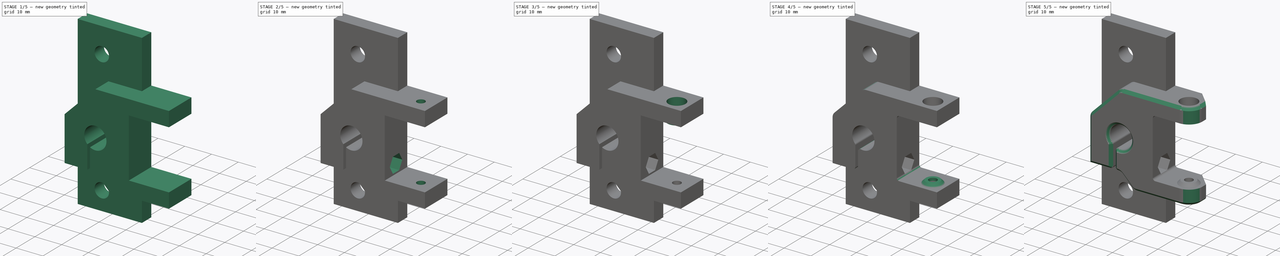
[diagram: build sequence overview — one tinted view per stage of 5, left to right]
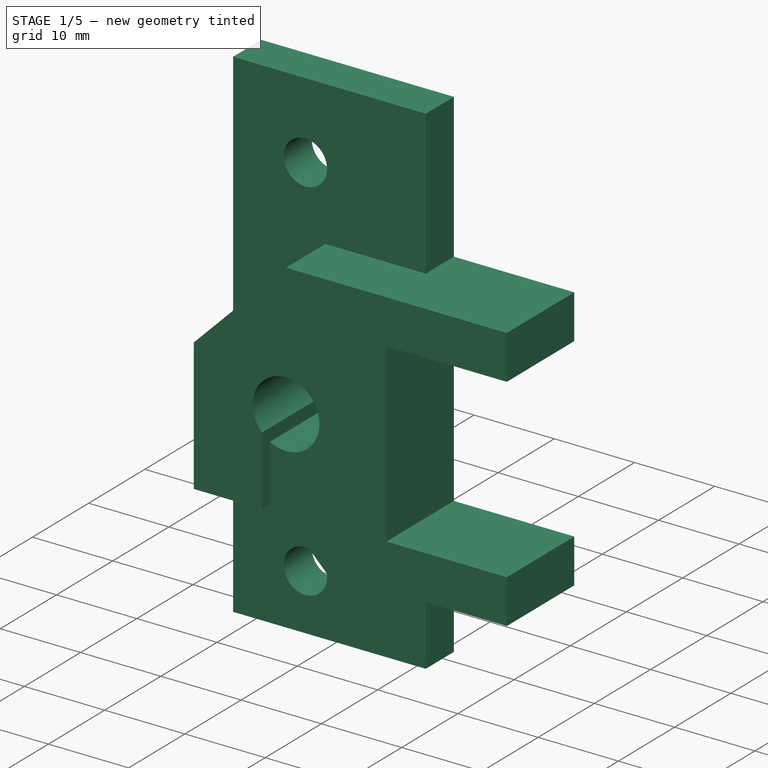
[diagram: stage 1 of 5 — iso view after this stage's code; geometry added in this stage tinted green]
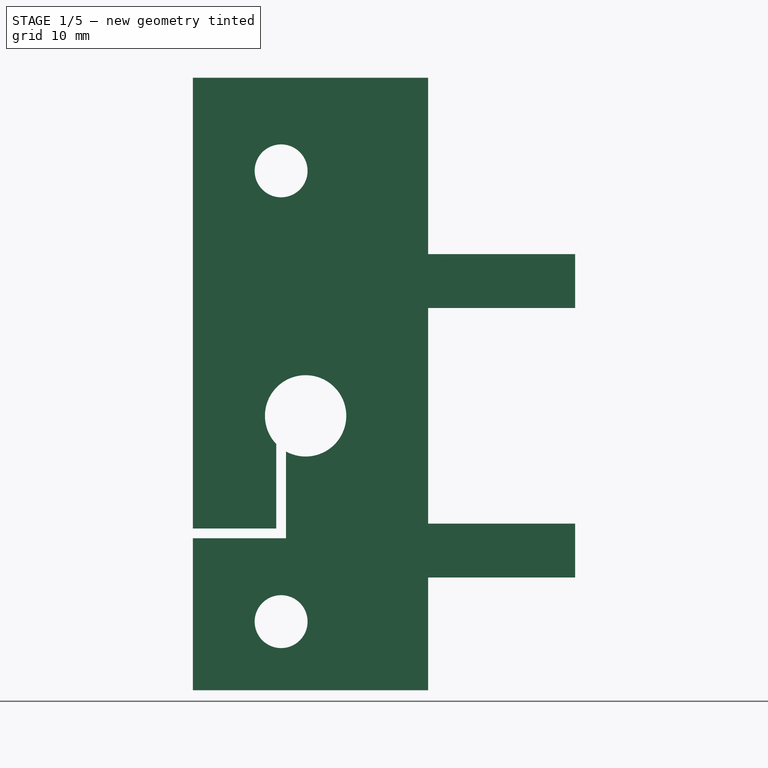
[diagram: stage 1 of 5 — front view after this stage's code; geometry added in this stage tinted green]
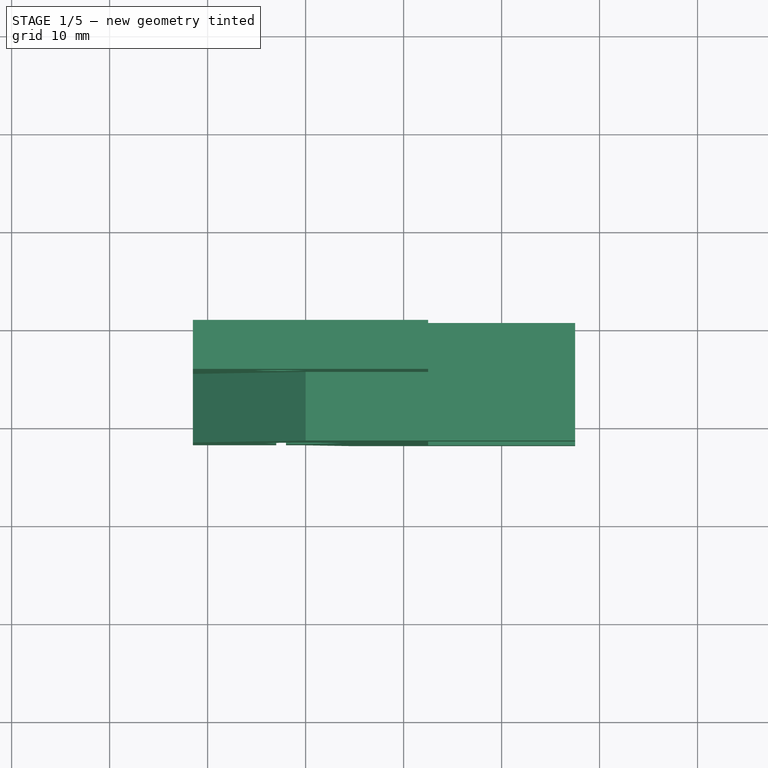
[diagram: stage 1 of 5 — top view after this stage's code; geometry added in this stage tinted green]
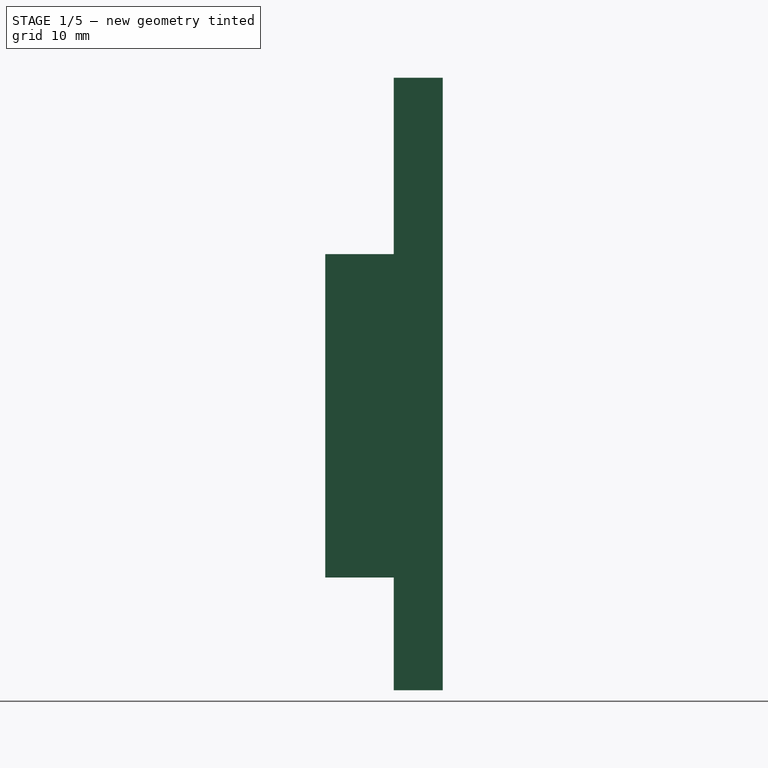
[diagram: stage 1 of 5 — right view after this stage's code; geometry added in this stage tinted green]
FCSTD DOCUMENT  (FreeCAD 0.17R13424 (Git))
Label: Corelia_0_XY_idler_mount
License: All rights reserved
LicenseURL: http://en.wikipedia.org/wiki/All_rights_reserved
objects: Sketcher::SketchObject×10, PartDesign::Pocket×7, PartDesign::Pad×3, PartDesign::Chamfer×3, PartDesign::Fillet×3, PartDesign::Mirrored×1, PartDesign::Body×1
note: 38 computed .brp shape members not serialized (recipe doc carries the construction recipe); baked Part::Feature solids carry a one-line shape summary decoded from their .brp

FEATURE [Sketcher::SketchObject] Sketch
  MapMode = 5
  Placement = pos=(0,0,0) rot=(1,0,0;1.5708rad)
  Support = -> [XZ_Plane]
  sketch-geometry (12):
    g0: Circle CenterX=0 CenterY=0 CenterZ=0 NormalX=0 NormalY=0 NormalZ=1 AngleXU=0 Radius=4.15
    g1: LineSegment StartX=-11.5 StartY=5 StartZ=0 EndX=-8e-12 EndY=16.5 EndZ=0
    g2: LineSegment StartX=-8e-12 StartY=16.5 StartZ=0 EndX=27.5 EndY=16.5 EndZ=0
    g3: LineSegment StartX=27.5 StartY=16.5 StartZ=0 EndX=27.5 EndY=11 EndZ=0
    g4: LineSegment StartX=27.5 StartY=11 StartZ=0 EndX=12.5 EndY=11 EndZ=0
    g5: LineSegment StartX=12.5 StartY=11 StartZ=0 EndX=12.5 EndY=-11 EndZ=0
    g6: LineSegment StartX=12.5 StartY=-11 StartZ=0 EndX=27.5 EndY=-11 EndZ=0
    g7: LineSegment StartX=27.5 StartY=-11 StartZ=0 EndX=27.5 EndY=-16.5 EndZ=0
    g8: LineSegment StartX=27.5 StartY=-16.5 StartZ=0 EndX=5 EndY=-16.5 EndZ=0
    g9: LineSegment StartX=5 StartY=-16.5 StartZ=0 EndX=0 EndY=-11.5 EndZ=0
    g10: LineSegment StartX=0 StartY=-11.5 StartZ=0 EndX=-11.5 EndY=-11.5 EndZ=0
    g11: LineSegment StartX=-11.5 StartY=-11.5 StartZ=0 EndX=-11.5 EndY=5 EndZ=0
  constraints (35):
    c: Coincident(g0,g-1)
    c: Radius(g0) = 4.15
    c: Coincident(g1,g2)
    c: Horizontal(g2)
    c: Coincident(g2,g3)
    c: Vertical(g3)
    c: Coincident(g3,g4)
    c: Horizontal(g4)
    c: Coincident(g4,g5)
    c: Vertical(g5)
    c: Coincident(g5,g6)
    c: Horizontal(g6)
    c: Coincident(g6,g7)
    c: Vertical(g7)
    c: Coincident(g7,g8)
    c: Horizontal(g8)
    c: Coincident(g8,g9)
    c: Coincident(g9,g10)
    c: Horizontal(g10)
    c: Coincident(g10,g11)
    c: Coincident(g11,g1)
    c: Vertical(g11)
    c: Equal(g3,g7)
    c: Equal(g4,g6)
    c: DistanceY(g3,g3) = 5.5
    c: DistanceY(g7,g2) = 33
    c: DistanceY(g-1,g1) = 16.5
    c: DistanceX(g4) = 12.5
    c: DistanceX(g1,g4) = 24
    c: DistanceX(g10,g10) = 11.5
    c: Angle(g8,g9) = 2.35619
    c: Angle(g1,g2) = 2.35619
    c: DistanceY(g10) = -11.5
    c: DistanceY(g1) = 5
    c: DistanceX(g6,g6) = 15
FEATURE [PartDesign::Pad] Pad  label="core"
  Length = 12
  Length2 = 100
  Placement = pos=(0,0,0) rot=(1,0,0;1.5708rad)
  Profile = -> Sketch
  Type = 0
FEATURE [Sketcher::SketchObject] Sketch001
  MapMode = 5
  Placement = pos=(0,0,0) rot=(1,0,0;1.5708rad)
  Support = -> [XZ_Plane]
  sketch-geometry (13):
    g0: LineSegment StartX=-11.5 StartY=34.5 StartZ=0 EndX=12.5 EndY=34.5 EndZ=0
    g1: LineSegment StartX=12.5 StartY=-28 StartZ=0 EndX=-11.5 EndY=-28 EndZ=0
    g2: Circle CenterX=-2.5 CenterY=25 CenterZ=0 NormalX=0 NormalY=0 NormalZ=1 AngleXU=0 Radius=2.7
    g3: Circle CenterX=-2.5 CenterY=-21 CenterZ=0 NormalX=0 NormalY=0 NormalZ=1 AngleXU=0 Radius=2.7
    g4: LineSegment StartX=-11.5 StartY=34.5 StartZ=0 EndX=-11.5 EndY=5 EndZ=0
    g5: LineSegment StartX=-11.5 StartY=5 StartZ=0 EndX=-1.1e-11 EndY=16.5 EndZ=0
    g6: LineSegment StartX=-1.1e-11 StartY=16.5 StartZ=0 EndX=12.5 EndY=16.5 EndZ=0
    g7: LineSegment StartX=12.5 StartY=16.5 StartZ=0 EndX=12.5 EndY=34.5 EndZ=0
    g8: LineSegment StartX=-11.5 StartY=-28 StartZ=0 EndX=-11.5 EndY=-11.5 EndZ=0
    g9: LineSegment StartX=-11.5 StartY=-11.5 StartZ=0 EndX=0 EndY=-11.5 EndZ=0
    g10: LineSegment StartX=0 StartY=-11.5 StartZ=0 EndX=5 EndY=-16.5 EndZ=0
    g11: LineSegment StartX=5 StartY=-16.5 StartZ=0 EndX=12.5 EndY=-16.5 EndZ=0
    g12: LineSegment StartX=12.5 StartY=-16.5 StartZ=0 EndX=12.5 EndY=-28 EndZ=0
  constraints (39):
    c: Horizontal(g0)
    c: Horizontal(g1)
    c: DistanceX(g0) = -11.5
    c: DistanceY(g0) = 34.5
    c: DistanceX(g0,g0) = 24
    c: DistanceY(g1,g0) = 62.5
    c: Equal(g3,g2)
    c: Radius(g2) = 2.7
    c: DistanceY(g2) = 25
    c: DistanceX(g3,g1) = 15
    c: DistanceY(g1,g3) = 7
    c: DistanceX(g2,g0) = 15
    c: Coincident(g0,g4)
    c: Vertical(g4)
    c: Coincident(g4,g5)
    c: Coincident(g5,g6)
    c: Horizontal(g6)
    c: Coincident(g6,g7)
    c: Coincident(g7,g0)
    c: Vertical(g7)
    c: Coincident(g1,g8)
    c: Vertical(g8)
    c: Coincident(g8,g9)
    c: Horizontal(g9)
    c: Coincident(g9,g10)
    c: Coincident(g10,g11)
    c: Horizontal(g11)
    c: Coincident(g11,g12)
    c: Coincident(g12,g1)
    c: Vertical(g12)
    c: Angle(g11,g10) = 2.35619
    c: DistanceY(g8,g-1) = 11.5
    c: DistanceY(g7,g7) = 18
    c: DistanceY(g4,g4) = 29.5
    c: Angle(g5,g4) = 0.785398
    c: DistanceX(g4,g9) = 11.5
    c: DistanceY(g11,g6) = 33
    c: Equal(g0,g1)
    c: PointOnObject(g8,g4)
FEATURE [PartDesign::Pad] Pad001  label="wings"
  BaseFeature = -> Pad
  Length = 5
  Length2 = 100
  Placement = pos=(0,0,0) rot=(1,0,0;1.5708rad)
  Profile = -> Sketch001
  Type = 0
FEATURE [Sketcher::SketchObject] Sketch002
  MapMode = 5
  Placement = pos=(0,-12,-1e-12) rot=(1,0,0;1.5708rad)
  Support = -> [Pad001]
  sketch-geometry (6):
    g0: LineSegment StartX=-11.5 StartY=-11.49 StartZ=0 EndX=-3 EndY=-11.49 EndZ=0
    g1: LineSegment StartX=-3 StartY=-11.49 StartZ=0 EndX=-3 EndY=-0.99 EndZ=0
    g2: LineSegment StartX=-3 StartY=-0.99 StartZ=0 EndX=-2 EndY=-0.99 EndZ=0
    g3: LineSegment StartX=-2 StartY=-0.99 StartZ=0 EndX=-2 EndY=-12.49 EndZ=0
    g4: LineSegment StartX=-2 StartY=-12.49 StartZ=0 EndX=-11.5 EndY=-12.49 EndZ=0
    g5: LineSegment StartX=-11.5 StartY=-12.49 StartZ=0 EndX=-11.5 EndY=-11.49 EndZ=0
  constraints (18):
    c: Coincident(g0,g1)
    c: Vertical(g1)
    c: Coincident(g1,g2)
    c: Horizontal(g2)
    c: Coincident(g2,g3)
    c: Vertical(g3)
    c: Coincident(g3,g4)
    c: Coincident(g4,g5)
    c: Coincident(g5,g0)
    c: Vertical(g5)
    c: Horizontal(g4)
    c: Horizontal(g0)
    c: DistanceY(g5,g5) = 1
    c: DistanceX(g2,g2) = 1
    c: DistanceX(g0) = -11.5
    c: DistanceY(g0) = -11.49
    c: DistanceX(g4,g4) = 9.5
    c: DistanceY(g3,g3) = 11.5
FEATURE [PartDesign::Pocket] Pocket  label="clamp_cut"
  BaseFeature = -> Pad001
  Length = 5
  Length2 = 100
  Placement = pos=(0,0,0) rot=(1,0,0;1.5708rad)
  Profile = -> Sketch002
  Type = 1
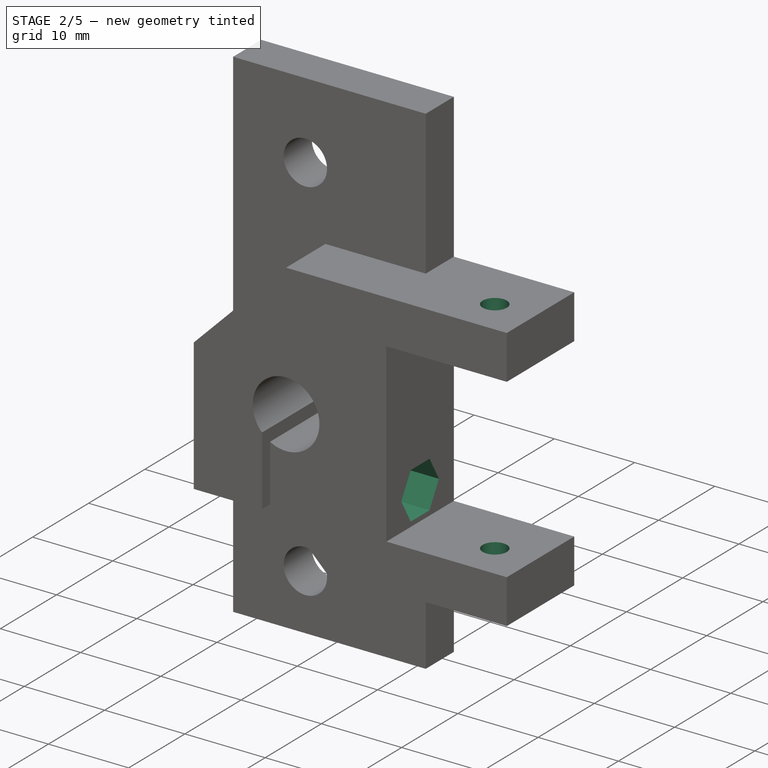
[diagram: stage 2 of 5 — iso view after this stage's code; geometry added in this stage tinted green]
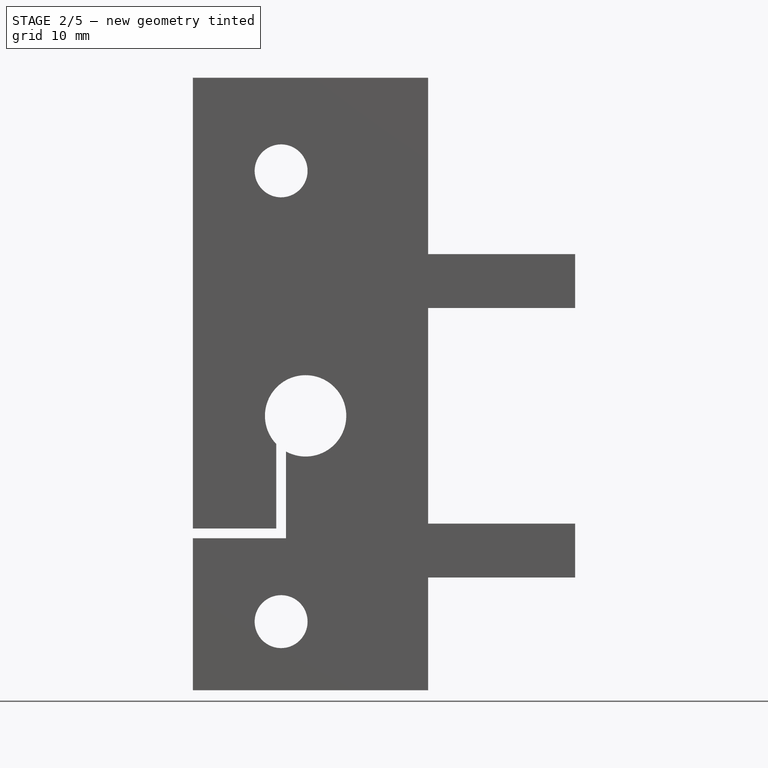
[diagram: stage 2 of 5 — front view after this stage's code; geometry added in this stage tinted green]
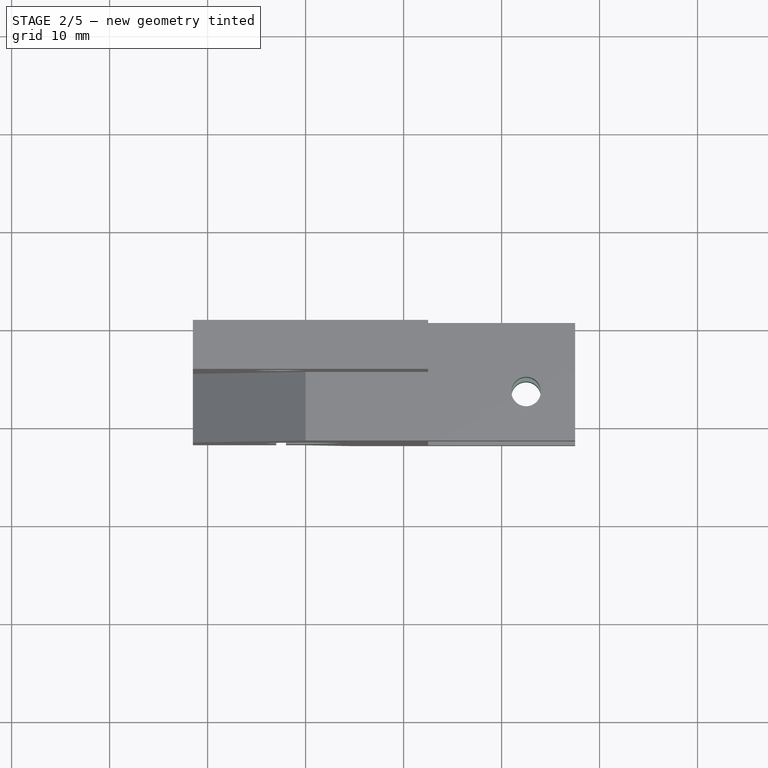
[diagram: stage 2 of 5 — top view after this stage's code; geometry added in this stage tinted green]
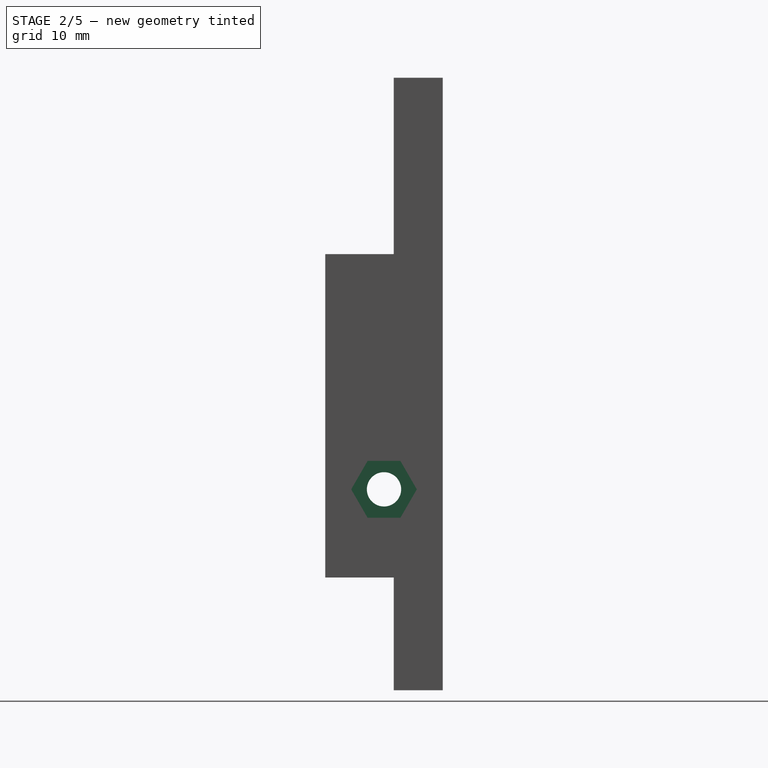
[diagram: stage 2 of 5 — right view after this stage's code; geometry added in this stage tinted green]
FEATURE [Sketcher::SketchObject] Sketch003
  MapMode = 5
  Placement = pos=(-11.5,0,0) rot=(0.707107,0,-0.707107;3.14159rad)
  Support = -> [Pocket]
  sketch-geometry (1):
    g0: Circle CenterX=7.5 CenterY=6 CenterZ=0 NormalX=0 NormalY=0 NormalZ=1 AngleXU=0 Radius=1.75
  constraints (3):
    c: Radius(g0) = 1.75
    c: DistanceX(g0) = 7.5
    c: DistanceY(g0) = 6
FEATURE [PartDesign::Pocket] Pocket001  label="clamp_screw_hole"
  BaseFeature = -> Pocket
  Length = 5
  Length2 = 100
  Placement = pos=(0,0,0) rot=(1,0,0;1.5708rad)
  Profile = -> Sketch003
  Type = 1
FEATURE [Sketcher::SketchObject] Sketch004
  MapMode = 5
  Placement = pos=(-11.5,0,0) rot=(0.707107,0,-0.707107;3.14159rad)
  Support = -> [Pocket001]
  sketch-geometry (1):
    g0: Circle CenterX=7.5 CenterY=6 CenterZ=0 NormalX=0 NormalY=0 NormalZ=1 AngleXU=0 Radius=3.2
  constraints (3):
    c: Radius(g0) = 3.2
    c: DistanceX(g0) = 7.5
    c: DistanceY(g0) = 6
FEATURE [PartDesign::Pocket] Pocket002  label="clamp_screw_head_hole"
  BaseFeature = -> Pocket001
  Length = 3
  Length2 = 100
  Placement = pos=(0,0,0) rot=(1,0,0;1.5708rad)
  Profile = -> Sketch004
  Type = 0
FEATURE [Sketcher::SketchObject] Sketch005
  MapMode = 5
  Placement = pos=(12.5,0,0) rot=(0.707107,0,0.707107;3.14159rad)
  Support = -> [Pocket002]
  sketch-geometry (7):
    g0: LineSegment StartX=-4.6 StartY=4.32568 StartZ=0 EndX=-4.6 EndY=7.67432 EndZ=0
    g1: LineSegment StartX=-4.6 StartY=7.67432 StartZ=0 EndX=-7.5 EndY=9.34863 EndZ=0
    g2: LineSegment StartX=-7.5 StartY=9.34863 StartZ=0 EndX=-10.4 EndY=7.67432 EndZ=0
    g3: LineSegment StartX=-10.4 StartY=7.67432 StartZ=0 EndX=-10.4 EndY=4.32568 EndZ=0
    g4: LineSegment StartX=-10.4 StartY=4.32568 StartZ=0 EndX=-7.5 EndY=2.65137 EndZ=0
    g5: LineSegment StartX=-7.5 StartY=2.65137 StartZ=0 EndX=-4.6 EndY=4.32568 EndZ=0
    g6: Circle [constr] CenterX=-7.5 CenterY=6 CenterZ=0 NormalX=0 NormalY=0 NormalZ=1 AngleXU=0 Radius=3.34863
  constraints (17):
    c: Coincident(g0,g1)
    c: Coincident(g1,g2)
    c: Coincident(g2,g3)
    c: Coincident(g3,g4)
    c: Coincident(g4,g5)
    c: Coincident(g5,g0)
    c: Equal(g0, g1-g5) x5
    c: PointOnObject(g0,g6)
    c: PointOnObject(g1,g6)
    c: PointOnObject(g2,g6)
    c: PointOnObject(g3,g6)
    c: PointOnObject(g4,g6)
    c: PointOnObject(g5,g6)
    c: Vertical(g0)
    c: DistanceX(g2,g0) = 5.8
    c: DistanceX(g6) = -7.5
    c: DistanceY(g6) = 6
FEATURE [PartDesign::Pocket] Pocket003  label="clamp_nut_hole"
  BaseFeature = -> Pocket002
  Length = 4
  Length2 = 100
  Placement = pos=(0,0,0) rot=(1,0,0;1.5708rad)
  Profile = -> Sketch005
  Type = 0
FEATURE [Sketcher::SketchObject] Sketch006
  MapMode = 5
  Placement = pos=(0,-2e-12,16.5) rot=(0,0,1;3.14159rad)
  Support = -> [Pocket003]
  sketch-geometry (1):
    g0: Circle CenterX=-22.5 CenterY=7 CenterZ=0 NormalX=0 NormalY=0 NormalZ=1 AngleXU=0 Radius=1.5
  constraints (3):
    c: DistanceX(g0) = -22.5
    c: DistanceY(g0) = 7
    c: Radius(g0) = 1.5
FEATURE [PartDesign::Pocket] Pocket004  label="pulley_screw_hole"
  BaseFeature = -> Pocket003
  Length = 5
  Length2 = 100
  Placement = pos=(0,0,0) rot=(1,0,0;1.5708rad)
  Profile = -> Sketch006
  Type = 1
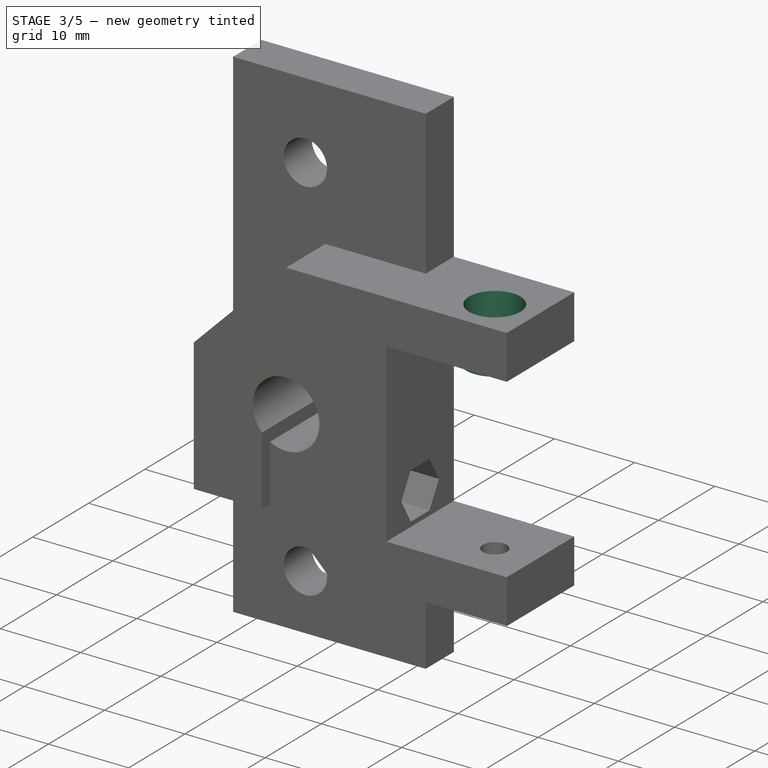
[diagram: stage 3 of 5 — iso view after this stage's code; geometry added in this stage tinted green]
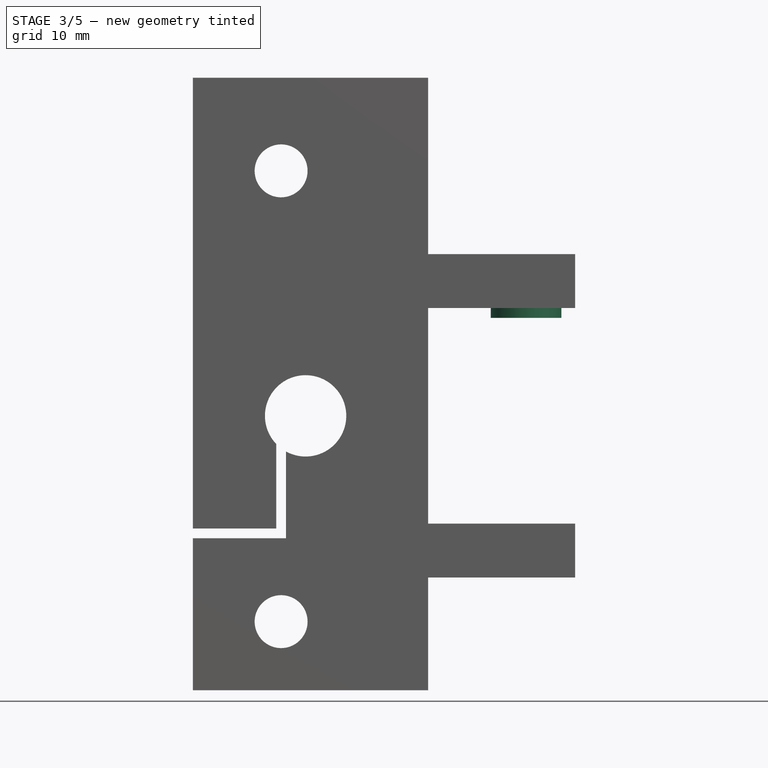
[diagram: stage 3 of 5 — front view after this stage's code; geometry added in this stage tinted green]
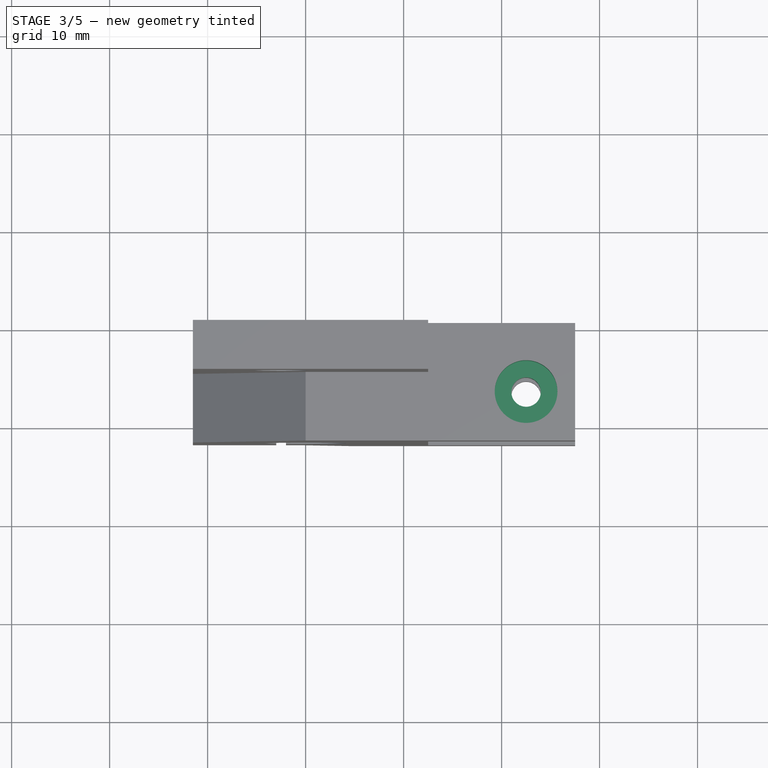
[diagram: stage 3 of 5 — top view after this stage's code; geometry added in this stage tinted green]
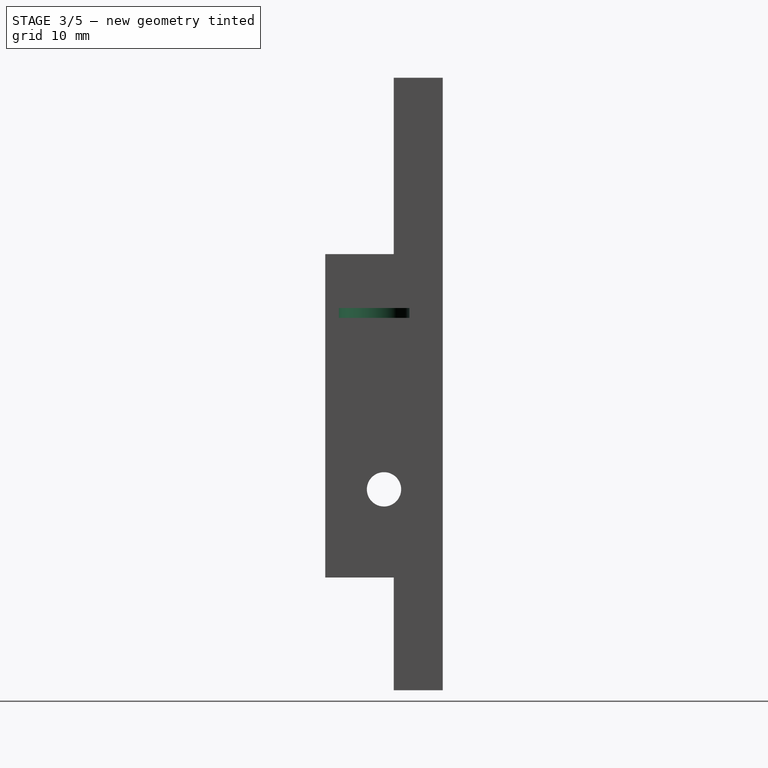
[diagram: stage 3 of 5 — right view after this stage's code; geometry added in this stage tinted green]
FEATURE [Sketcher::SketchObject] Sketch007
  MapMode = 5
  Placement = pos=(0,2e-12,-16.5) rot=(1,0,0;3.14159rad)
  Support = -> [Pocket004]
  sketch-geometry (7):
    g0: LineSegment StartX=25.4 StartY=5.32568 StartZ=0 EndX=25.4 EndY=8.67432 EndZ=0
    g1: LineSegment StartX=25.4 StartY=8.67432 StartZ=0 EndX=22.5 EndY=10.3486 EndZ=0
    g2: LineSegment StartX=22.5 StartY=10.3486 StartZ=0 EndX=19.6 EndY=8.67432 EndZ=0
    g3: LineSegment StartX=19.6 StartY=8.67432 StartZ=0 EndX=19.6 EndY=5.32568 EndZ=0
    g4: LineSegment StartX=19.6 StartY=5.32568 StartZ=0 EndX=22.5 EndY=3.65137 EndZ=0
    g5: LineSegment StartX=22.5 StartY=3.65137 StartZ=0 EndX=25.4 EndY=5.32568 EndZ=0
    g6: Circle [constr] CenterX=22.5 CenterY=7 CenterZ=0 NormalX=0 NormalY=0 NormalZ=1 AngleXU=0 Radius=3.34863
  constraints (17):
    c: Coincident(g0,g1)
    c: Coincident(g1,g2)
    c: Coincident(g2,g3)
    c: Coincident(g3,g4)
    c: Coincident(g4,g5)
    c: Coincident(g5,g0)
    c: Equal(g0, g1-g5) x5
    c: PointOnObject(g0,g6)
    c: PointOnObject(g1,g6)
    c: PointOnObject(g2,g6)
    c: PointOnObject(g3,g6)
    c: PointOnObject(g4,g6)
    c: PointOnObject(g5,g6)
    c: Vertical(g3)
    c: DistanceX(g2,g0) = 5.8
    c: DistanceX(g6) = 22.5
    c: DistanceY(g6) = 7
FEATURE [PartDesign::Pocket] Pocket005  label="pulley_nut_hole"
  BaseFeature = -> Pocket004
  Length = 3
  Length2 = 100
  Placement = pos=(0,0,0) rot=(1,0,0;1.5708rad)
  Profile = -> Sketch007
  Type = 0
FEATURE [Sketcher::SketchObject] Sketch008
  ExternalGeometry = -> [Pocket005]
  MapMode = 5
  Placement = pos=(0,-2e-12,16.5) rot=(0,0,1;3.14159rad)
  Support = -> [Pocket005]
  sketch-geometry (1):
    g0: Circle CenterX=-22.5 CenterY=7 CenterZ=0 NormalX=0 NormalY=0 NormalZ=1 AngleXU=0 Radius=3.2
  constraints (3):
    c: Radius(g0) = 3.2
    c: DistanceX(g0) = -22.5
    c: DistanceY(g0) = 7
FEATURE [PartDesign::Pocket] Pocket006  label="pulley_screw_head_hole"
  BaseFeature = -> Pocket005
  Length = 3
  Length2 = 100
  Placement = pos=(0,0,0) rot=(1,0,0;1.5708rad)
  Profile = -> Sketch008
  Type = 0
FEATURE [Sketcher::SketchObject] Sketch009
  ExternalGeometry = -> [Pocket006]
  MapMode = 5
  Placement = pos=(0,-1e-12,11) rot=(1,0,0;3.14159rad)
  Support = -> [Pocket006]
  sketch-geometry (2):
    g0: Circle CenterX=22.5 CenterY=7 CenterZ=0 NormalX=0 NormalY=0 NormalZ=1 AngleXU=0 Radius=3.6
    g1: Circle CenterX=22.5 CenterY=7 CenterZ=0 NormalX=0 NormalY=0 NormalZ=1 AngleXU=0 Radius=1.5
  constraints (5):
    c: DistanceX(g0) = 22.5
    c: DistanceY(g0) = 7
    c: Coincident(g1,g0)
    c: Radius(g1) = 1.5
    c: Radius(g0) = 3.6
FEATURE [PartDesign::Pad] Pad002  label="Pulley_top_pad_separator"
  BaseFeature = -> Pocket006
  Length = 1
  Length2 = 100
  Placement = pos=(0,0,0) rot=(1,0,0;1.5708rad)
  Profile = -> Sketch009
  Type = 0
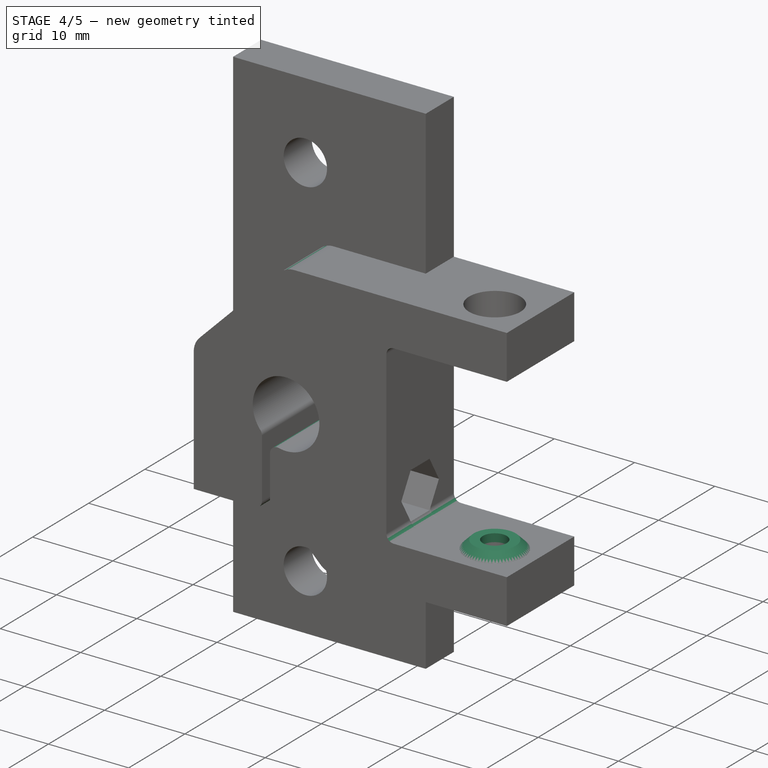
[diagram: stage 4 of 5 — iso view after this stage's code; geometry added in this stage tinted green]
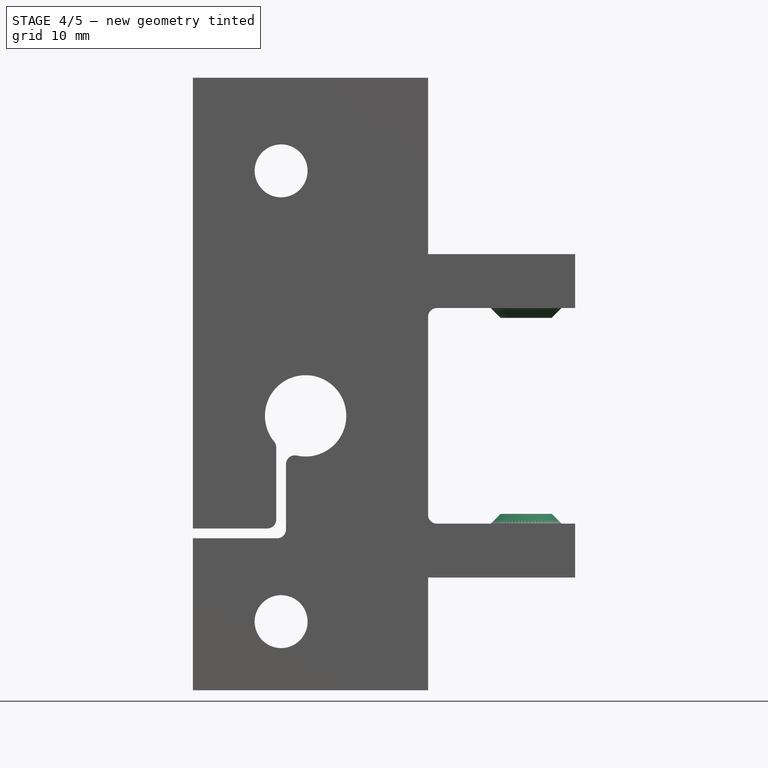
[diagram: stage 4 of 5 — front view after this stage's code; geometry added in this stage tinted green]
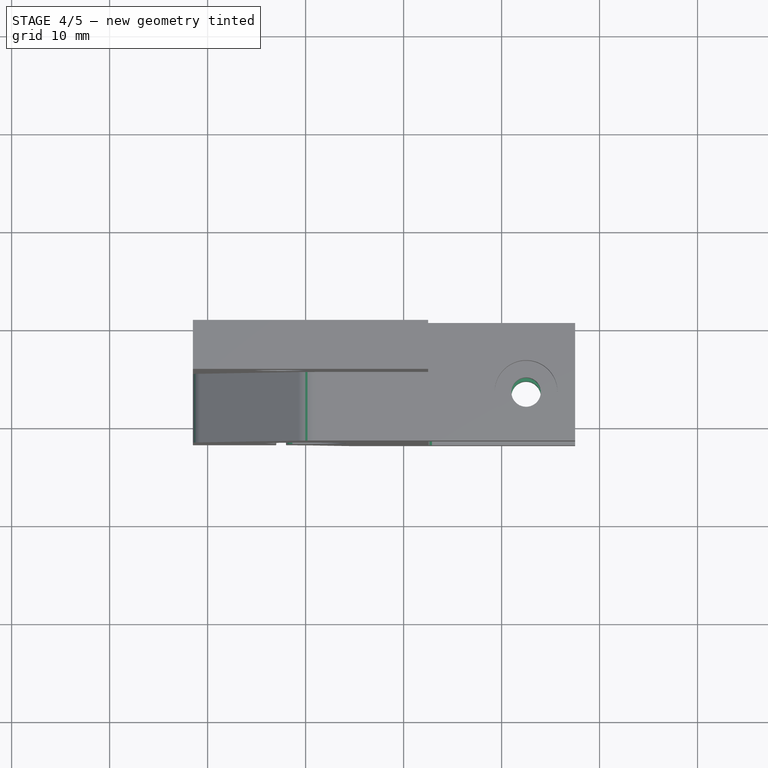
[diagram: stage 4 of 5 — top view after this stage's code; geometry added in this stage tinted green]
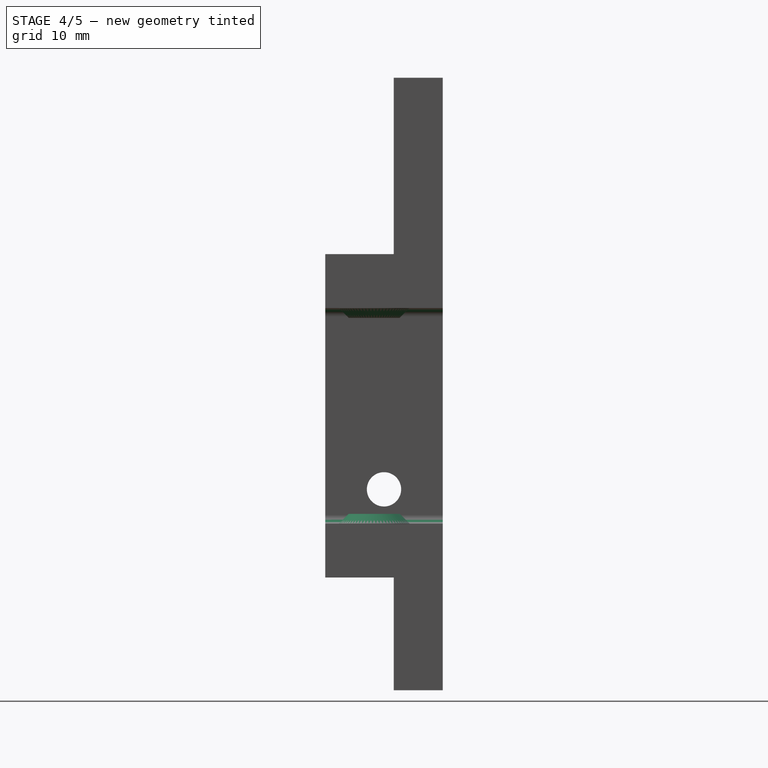
[diagram: stage 4 of 5 — right view after this stage's code; geometry added in this stage tinted green]
FEATURE [PartDesign::Mirrored] Mirrored
  BaseFeature = -> Pad002
  MirrorPlane = -> XY_Plane
  Originals = -> [Pad002]
  Placement = pos=(0,0,0) rot=(1,0,0;1.5708rad)
FEATURE [PartDesign::Chamfer] Chamfer
  Base = -> Mirrored [Edge128,Edge114]
  BaseFeature = -> Mirrored
  Placement = pos=(0,0,0) rot=(1,0,0;1.5708rad)
  Size = 0.99
FEATURE [PartDesign::Fillet] Fillet
  Base = -> Chamfer [Edge73,Edge76,Edge72,Edge77,Edge80,Edge11,Edge6]
  BaseFeature = -> Chamfer
  Placement = pos=(0,0,0) rot=(1,0,0;1.5708rad)
  Radius = 0.9
FEATURE [PartDesign::Fillet] Fillet001
  Base = -> Fillet [Edge69,Edge80,Edge109,Edge122]
  BaseFeature = -> Fillet
  Placement = pos=(0,0,0) rot=(1,0,0;1.5708rad)
  Radius = 2.5
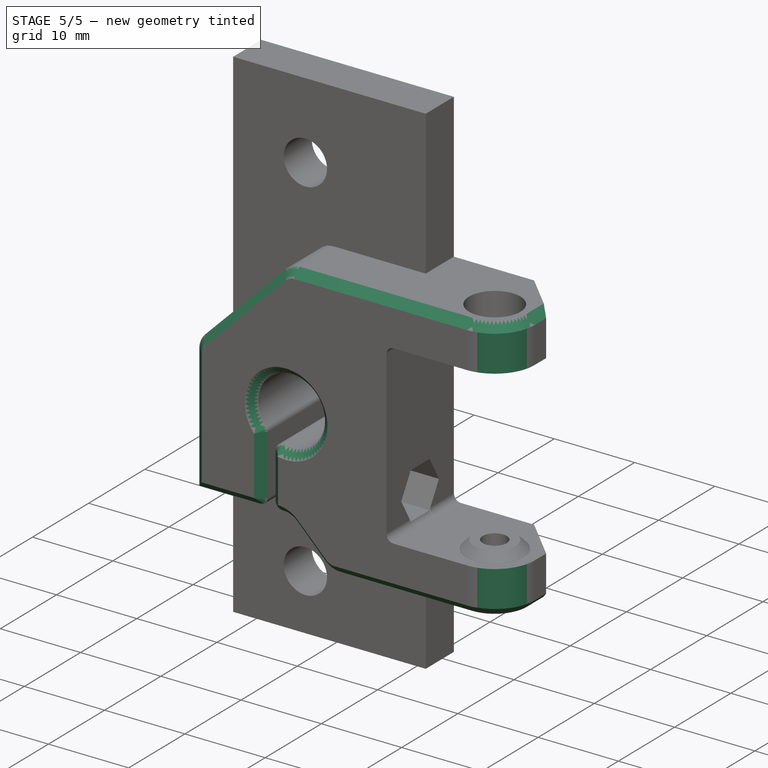
[diagram: stage 5 of 5 — iso view after this stage's code; geometry added in this stage tinted green]
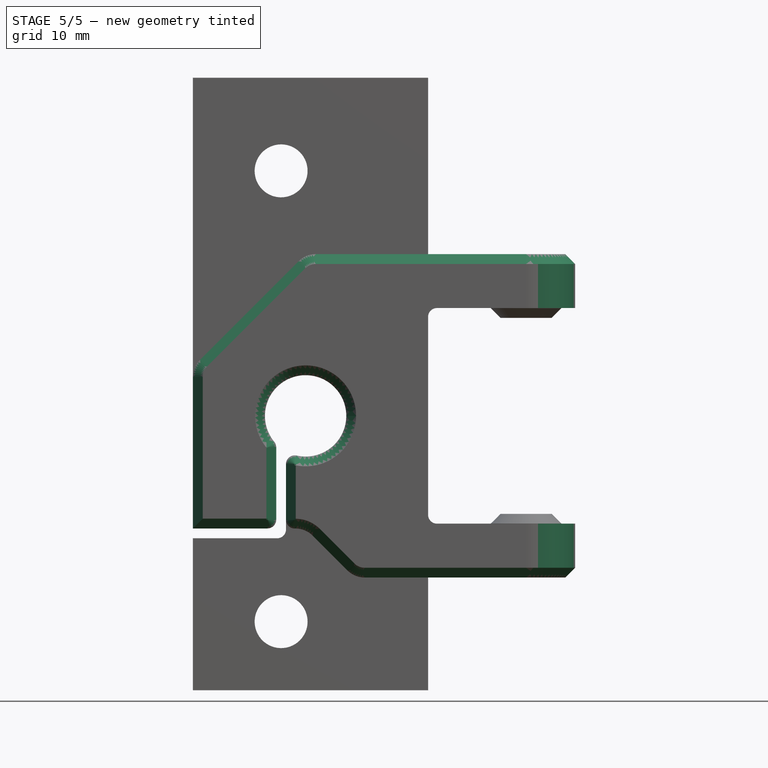
[diagram: stage 5 of 5 — front view after this stage's code; geometry added in this stage tinted green]
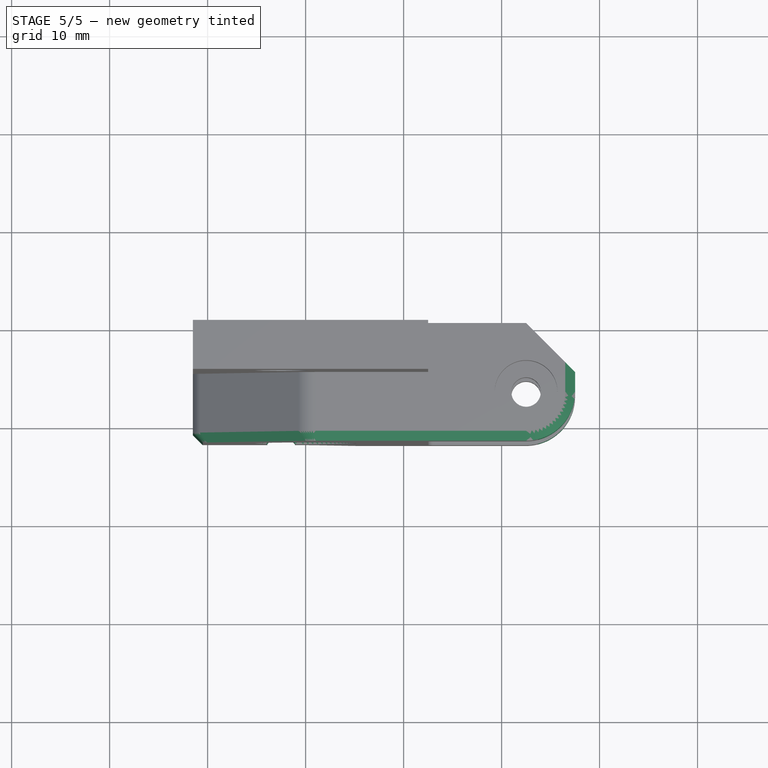
[diagram: stage 5 of 5 — top view after this stage's code; geometry added in this stage tinted green]
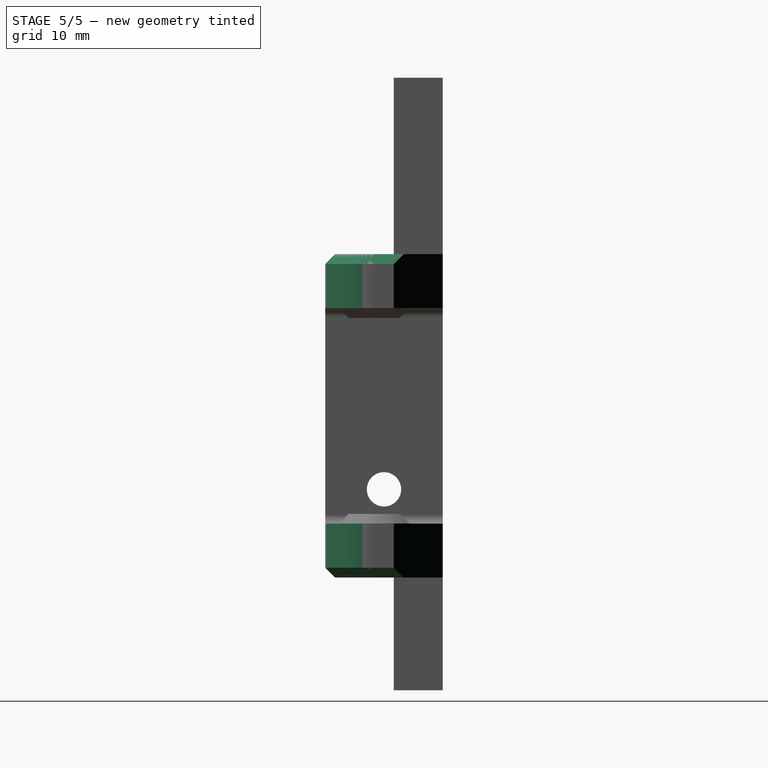
[diagram: stage 5 of 5 — right view after this stage's code; geometry added in this stage tinted green]
FEATURE [PartDesign::Fillet] Fillet002
  Base = -> Fillet001 [Edge6,Edge12]
  BaseFeature = -> Fillet001
  Placement = pos=(0,0,0) rot=(1,0,0;1.5708rad)
  Radius = 5
FEATURE [PartDesign::Chamfer] Chamfer001
  Base = -> Fillet002 [Edge115,Edge123]
  BaseFeature = -> Fillet002
  Placement = pos=(0,0,0) rot=(1,0,0;1.5708rad)
  Size = 5
FEATURE [PartDesign::Chamfer] Chamfer002
  Base = -> Chamfer001 [Edge40,Edge51]
  BaseFeature = -> Chamfer001
  Placement = pos=(0,0,0) rot=(1,0,0;1.5708rad)
  Size = 1
FEATURE [PartDesign::Body] Body
  Group = -> [Sketch,Pad,Sketch001,Pad001,Sketch002,Pocket,Sketch003,Pocket001,Sketch004,Pocket002,Sketch005,Pocket003,Sketch006,Pocket004,Sketch007,Pocket005,Sketch008,Pocket006,Sketch009,Pad002,Mirrored,Chamfer,Fillet,Fillet001,Fillet002,Chamfer001,Chamfer002]
  Origin = -> Origin
  Tip = -> Chamfer002
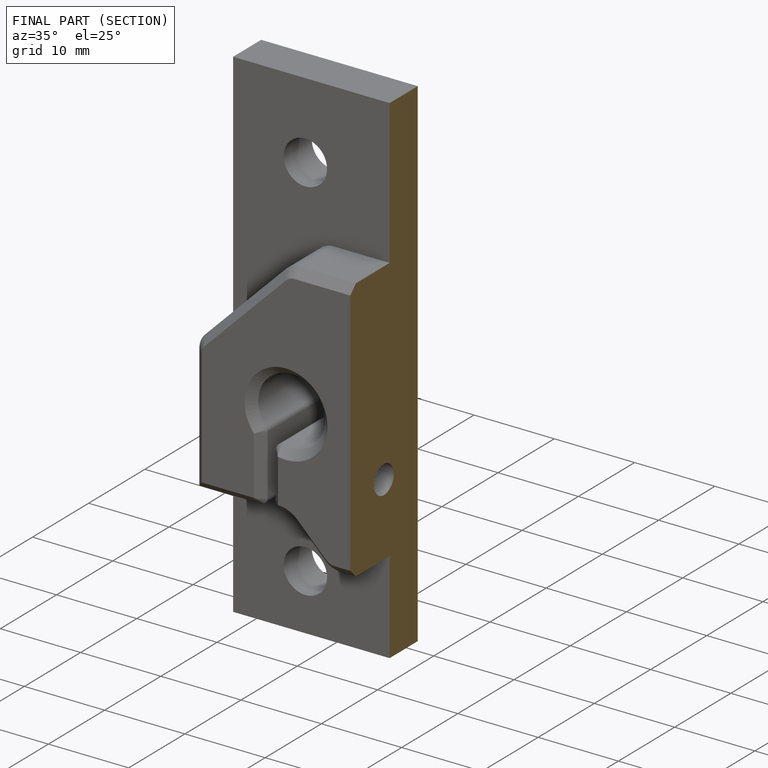
[diagram: finished part — half-section view (interior)]
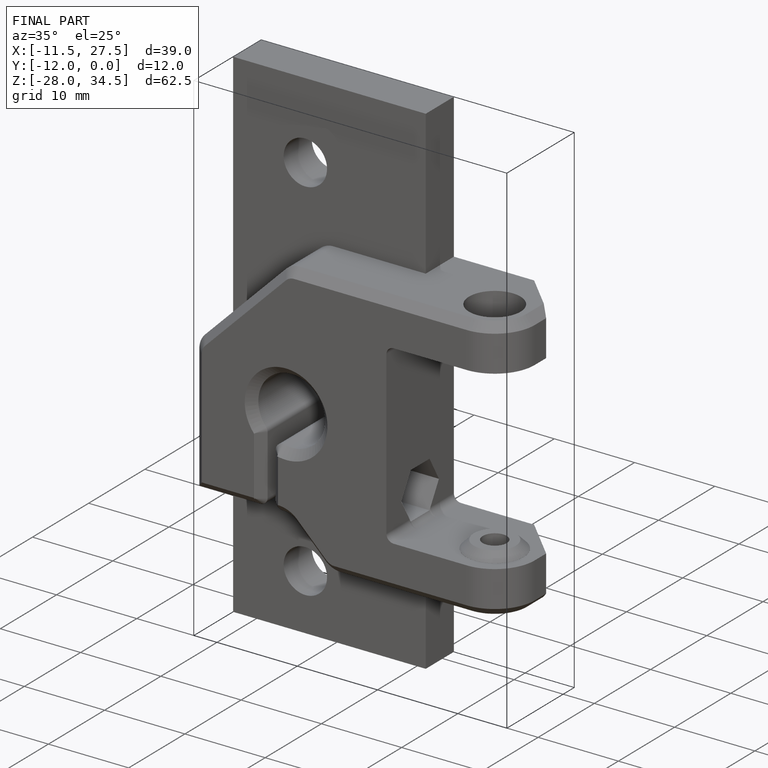
[diagram: finished part — iso view with bounding-box wireframe]
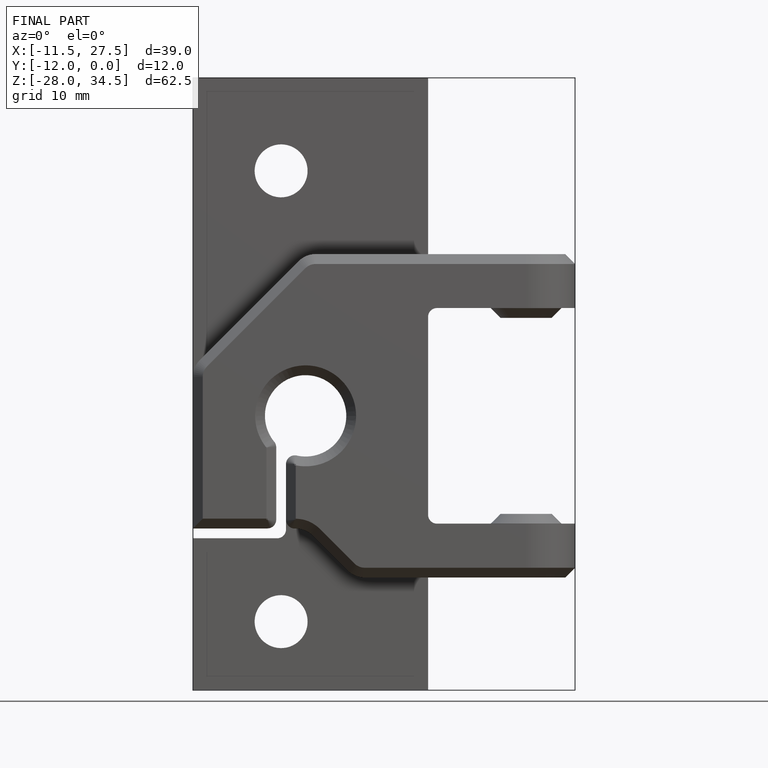
[diagram: finished part — front view with bounding-box wireframe]
